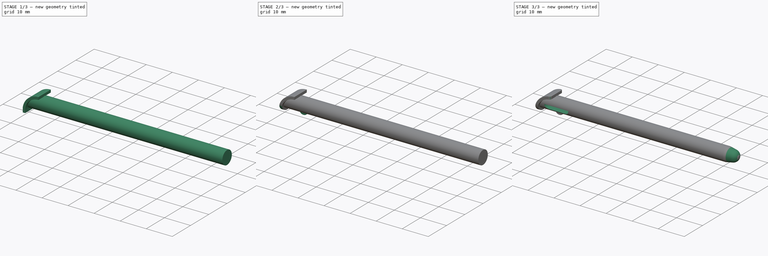
[diagram: build sequence overview — one tinted view per stage of 3, left to right]
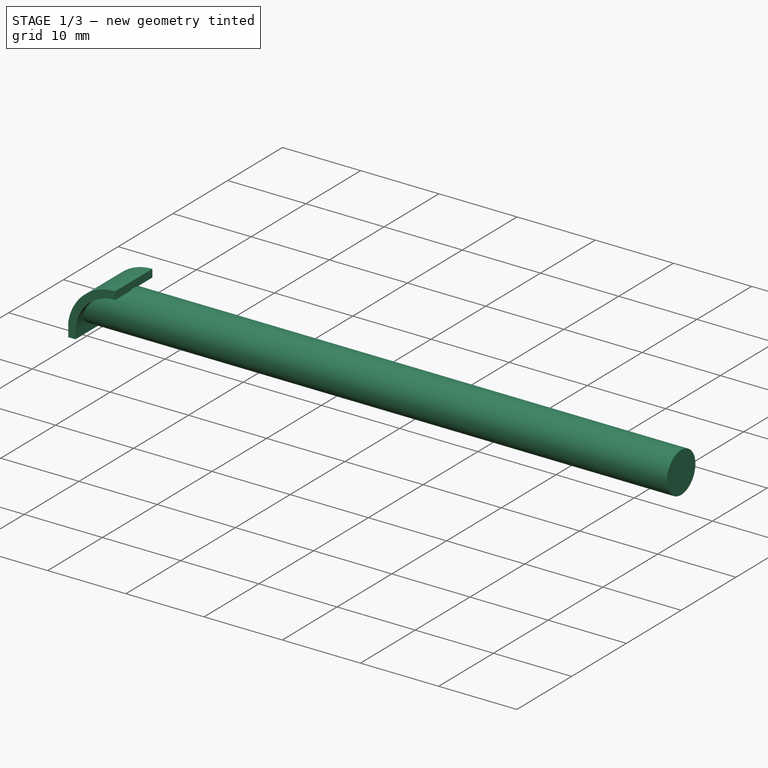
[diagram: stage 1 of 3 — iso view after this stage's code; geometry added in this stage tinted green]
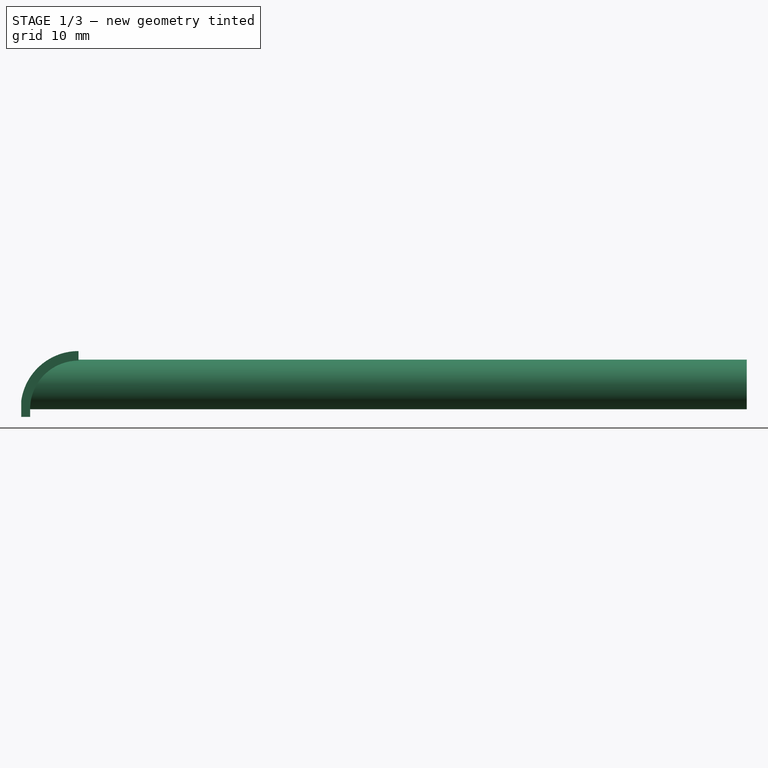
[diagram: stage 1 of 3 — front view after this stage's code; geometry added in this stage tinted green]
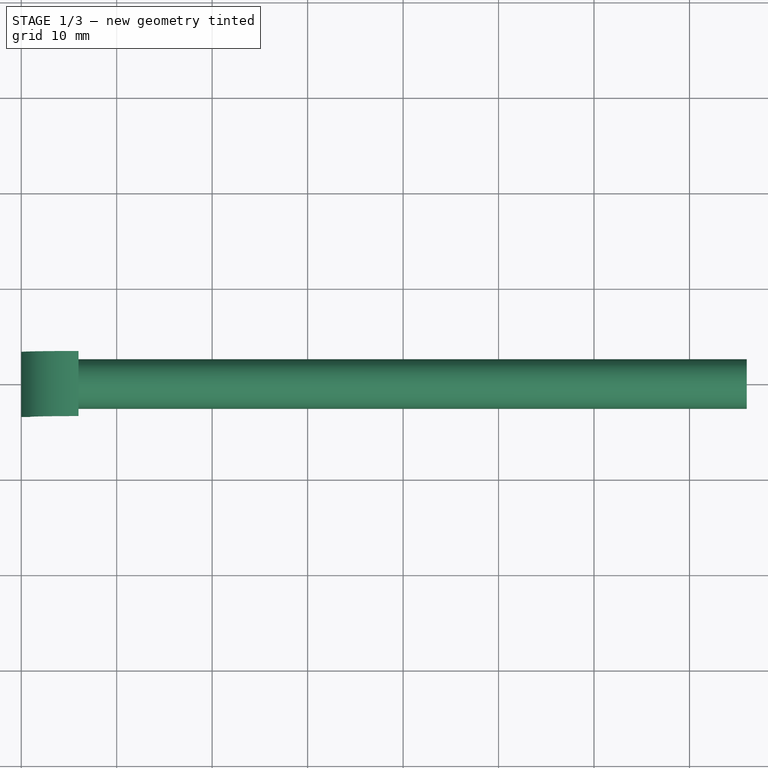
[diagram: stage 1 of 3 — top view after this stage's code; geometry added in this stage tinted green]
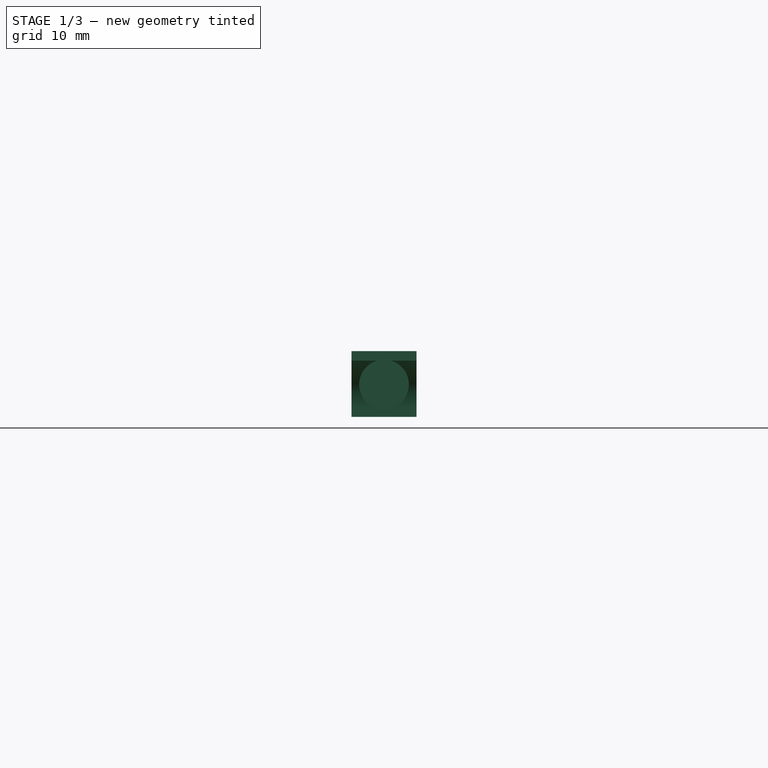
[diagram: stage 1 of 3 — right view after this stage's code; geometry added in this stage tinted green]
FCSTD DOCUMENT  (FreeCAD 1.0R39109 (Git))
Label: New 3DS XL Stylus
License: Creative Commons Attribution-NonCommercial-ShareAlike
LicenseURL: http://creativecommons.org/licenses/by-nc-sa/4.0/
objects: Sketcher::SketchObject×7, PartDesign::Pad×3, PartDesign::Pocket×3, PartDesign::Fillet×1, PartDesign::Groove×1, PartDesign::Body×1
note: 39 computed .brp shape members not serialized (recipe doc carries the construction recipe); baked Part::Feature solids carry a one-line shape summary decoded from their .brp

FEATURE [Sketcher::SketchObject] Sketch
  ArcFitTolerance = 0
  AttachmentSupport = -> [YZ_Plane]
  FullyConstrained = true
  MakeInternals = false
  MapMode = 5
  Placement = pos=(0,0,0) rot=(0.57735,0.57735,0.57735;2.0944rad)
  sketch-geometry (1):
    g0: Circle CenterX=0 CenterY=0 CenterZ=0 NormalX=0 NormalY=0 NormalZ=1 AngleXU=0 Radius=2.6
  constraints (2):
    c: Coincident(g0,g-1)
    c: Diameter(g0) = 5.2
FEATURE [PartDesign::Pad] Pad
  Direction = (1,0,0)
  Length = 76
  Length2 = 10
  Placement = pos=(0,0,0) rot=(0.57735,0.57735,0.57735;2.0944rad)
  Profile = -> Sketch
  ReferenceAxis = -> Sketch [N_Axis]
  Suppressed = false
  Type = 0
FEATURE [Sketcher::SketchObject] Sketch001
  ArcFitTolerance = 0
  AttachmentSupport = -> [XZ_Plane]
  ExternalGeometry = -> [Pad]
  FullyConstrained = true
  MakeInternals = false
  MapMode = 5
  Placement = pos=(0,0,0) rot=(1,0,0;1.5708rad)
  sketch-geometry (14):
    g0: LineSegment [constr] StartX=1.4e-15 StartY=-2.56864 StartZ=0 EndX=6 EndY=-2.56864 EndZ=0
    g1: LineSegment [constr] StartX=6.048e-13 StartY=0 StartZ=0 EndX=6.048e-13 EndY=-3.4 EndZ=0
    g2: LineSegment [constr] StartX=6 StartY=-2.56864 StartZ=0 EndX=6 EndY=3.5 EndZ=0
    g3: LineSegment StartX=6 StartY=3.5 StartZ=0 EndX=6 EndY=2.5 EndZ=0
    g4: LineSegment [constr] StartX=6.048e-13 StartY=-3.4 StartZ=0 EndX=1 EndY=-3.4 EndZ=0
    g5: Circle [constr] CenterX=6 CenterY=-2.56864 CenterZ=0 NormalX=0 NormalY=0 NormalZ=1 AngleXU=0 Radius=5.06864
    g6: LineSegment [constr] StartX=6.048e-13 StartY=0 StartZ=0 EndX=0 EndY=3.5 EndZ=0
    g7: LineSegment [constr] StartX=0 StartY=3.5 StartZ=0 EndX=6 EndY=3.5 EndZ=0
    g8: ArcOfCircle [constr] CenterX=6 CenterY=-2.5587 CenterZ=0 NormalX=0 NormalY=0 NormalZ=1 AngleXU=0 Radius=6.0587 StartAngle=1.5708 EndAngle=3.2809
    g9: LineSegment StartX=6.048e-13 StartY=-3.4 StartZ=0 EndX=6.048e-13 EndY=-1.7174 EndZ=0
    g10: ArcOfCircle CenterX=6 CenterY=-2.5587 CenterZ=0 NormalX=0 NormalY=0 NormalZ=1 AngleXU=0 Radius=6.0587 StartAngle=1.5708 EndAngle=3.00228
    g11: LineSegment StartX=0.931356 StartY=-2.56864 StartZ=0 EndX=0.931356 EndY=-3.4 EndZ=0
    g12: LineSegment StartX=6.048e-13 StartY=-3.4 StartZ=0 EndX=0.931356 EndY=-3.4 EndZ=0
    g13: ArcOfCircle CenterX=6 CenterY=-2.56864 CenterZ=0 NormalX=0 NormalY=0 NormalZ=1 AngleXU=0 Radius=5.06864 StartAngle=1.5708 EndAngle=3.14159
  constraints (40):
    c: PointOnObject(g0,g-3)
    c: Horizontal(g0)
    c: Distance(g0) = 6
    c: Coincident(g1,g-1)
    c: Vertical(g1)
    c: Distance(g1) = 3.4
    c: Coincident(g2,g0)
    c: Vertical(g2)
    c: Coincident(g3,g2)
    c: Vertical(g3)
    c: Distance(g3) = 1
    c: Coincident(g4,g1)
    c: Horizontal(g4)
    c: Distance(g4) = 1
    c: Coincident(g5,g0)
    c: PointOnObject(g4,g5)
    c: PointOnObject(g3,g5)
    c: Coincident(g6,g1)
    c: PointOnObject(g6,g-2)
    c: Coincident(g7,g6)
    c: Coincident(g7,g3)
    c: Horizontal(g7)
    c: Distance(g6) = 3.5
    c: Coincident(g8,g4)
    c: Coincident(g8,g3)
    c: Tangent(g8,g7)
    c: Coincident(g9,g4)
    c: PointOnObject(g9,g8)
    c: Vertical(g9)
    c: Coincident(g10,g9)
    c: Coincident(g10,g3)
    c: Equal(g10,g8)
    c: PointOnObject(g11,g5)
    c: PointOnObject(g11,g4)
    c: Vertical(g11)
    c: Coincident(g12,g9)
    c: Coincident(g12,g11)
    c: Coincident(g13,g3)
    c: Equal(g13,g5)
    c: Tangent(g13,g11) = -1.5708
FEATURE [PartDesign::Pad] Pad001
  BaseFeature = -> Pad
  Direction = (0,-1,2e-16)
  Length = 3.4
  Length2 = 3.4
  Placement = pos=(0,0,0) rot=(0.57735,0.57735,0.57735;2.0944rad)
  Profile = -> Sketch001
  ReferenceAxis = -> Sketch001 [N_Axis]
  Suppressed = false
  Type = 4
FEATURE [Sketcher::SketchObject] Sketch002
  ArcFitTolerance = 0
  AttachmentSupport = -> [Pad001]
  ExternalGeometry = -> [Pad001]
  FullyConstrained = true
  MakeInternals = false
  MapMode = 5
  Placement = pos=(0,-3.4,1.9e-15) rot=(0.57735,0.57735,-0.57735;2.0944rad)
  sketch-geometry (6):
    g0: LineSegment StartX=3.4 StartY=6.064e-13 StartZ=0 EndX=3.4 EndY=-1 EndZ=0
    g1: LineSegment StartX=3.4 StartY=-1 StartZ=0 EndX=-4.5 EndY=-1 EndZ=0
    g2: LineSegment StartX=-4.5 StartY=-1 StartZ=0 EndX=-4.5 EndY=6 EndZ=0
    g3: LineSegment StartX=-4.5 StartY=6 StartZ=0 EndX=-3.5 EndY=6 EndZ=0
    g4: ArcOfCircle CenterX=2.5587 CenterY=6 CenterZ=0 NormalX=0 NormalY=0 NormalZ=1 AngleXU=0 Radius=6.0587 StartAngle=3.14159 EndAngle=4.57308
    g5: LineSegment StartX=1.7174 StartY=6.084e-13 StartZ=0 EndX=3.4 EndY=6.064e-13 EndZ=0
  constraints (16):
    c: Coincident(g0,g-4)
    c: Vertical(g0)
    c: Coincident(g1,g0)
    c: Horizontal(g1)
    c: Coincident(g2,g1)
    c: Vertical(g2)
    c: Coincident(g3,g2)
    c: Coincident(g3,g-3)
    c: Horizontal(g3)
    c: Coincident(g4,g3)
    c: Coincident(g4,g-3)
    c: Coincident(g5,g4)
    c: Coincident(g5,g0)
    c: Equal(g3,g0)
    c: Distance(g3) = 1
    c: Equal(g-3,g4)
FEATURE [PartDesign::Pocket] Pocket
  BaseFeature = -> Pad001
  Direction = (0,1,0)
  Length = 10
  Length2 = 5
  Placement = pos=(0,0,0) rot=(0.57735,0.57735,0.57735;2.0944rad)
  Profile = -> Sketch002
  ReferenceAxis = -> Sketch002 [N_Axis]
  Refine = true
  Suppressed = false
  Type = 0
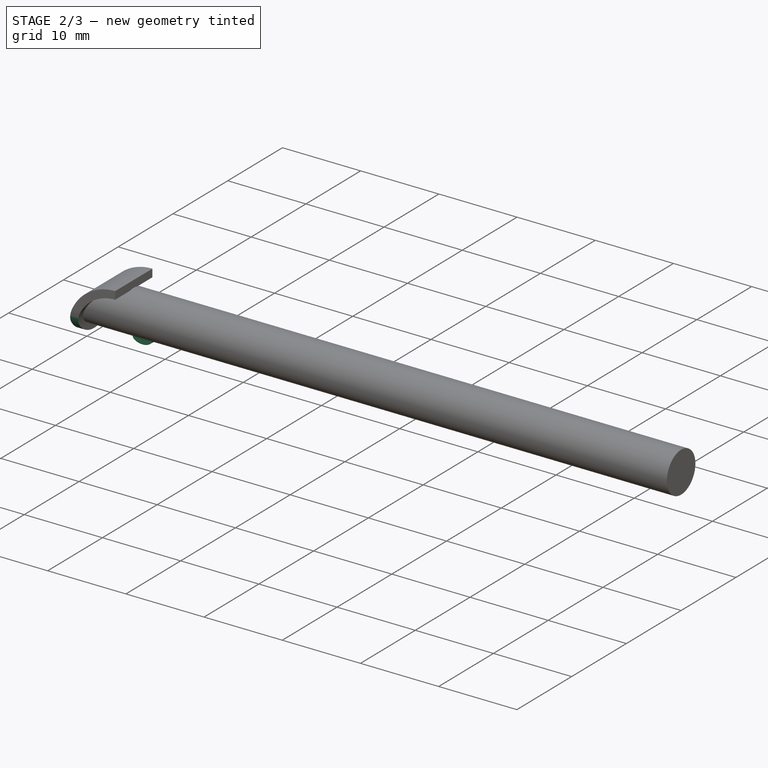
[diagram: stage 2 of 3 — iso view after this stage's code; geometry added in this stage tinted green]
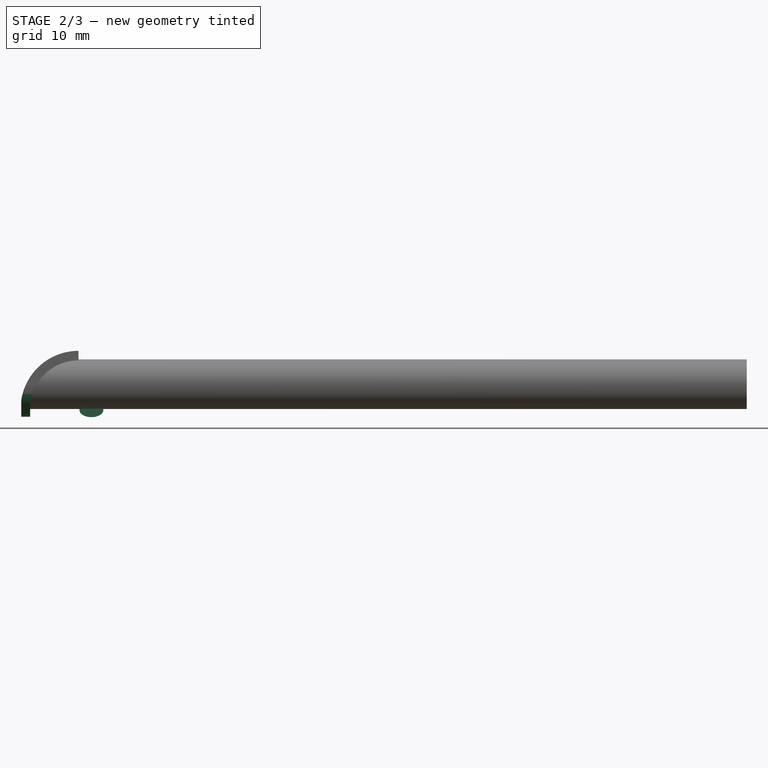
[diagram: stage 2 of 3 — front view after this stage's code; geometry added in this stage tinted green]
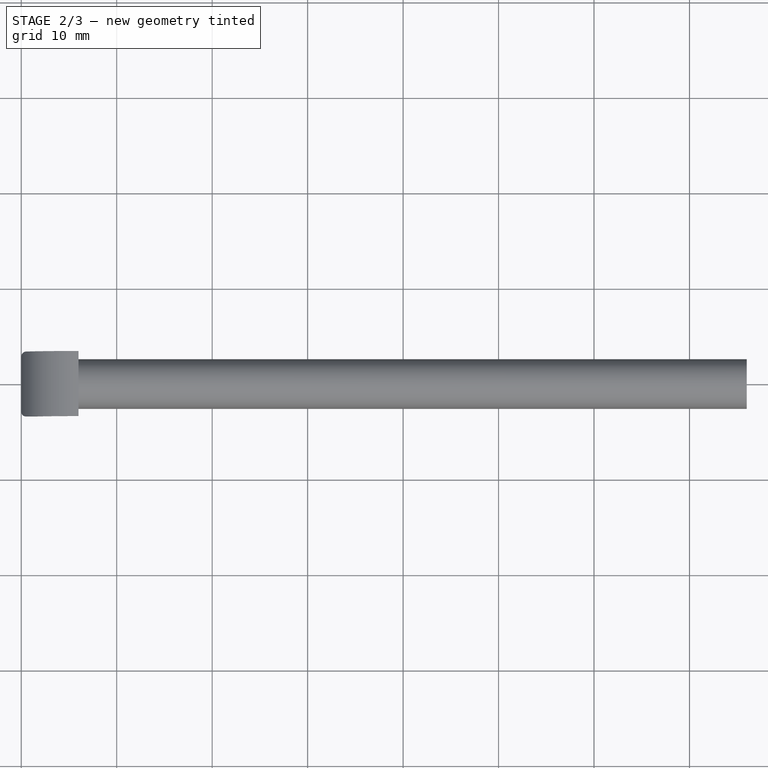
[diagram: stage 2 of 3 — top view after this stage's code; geometry added in this stage tinted green]
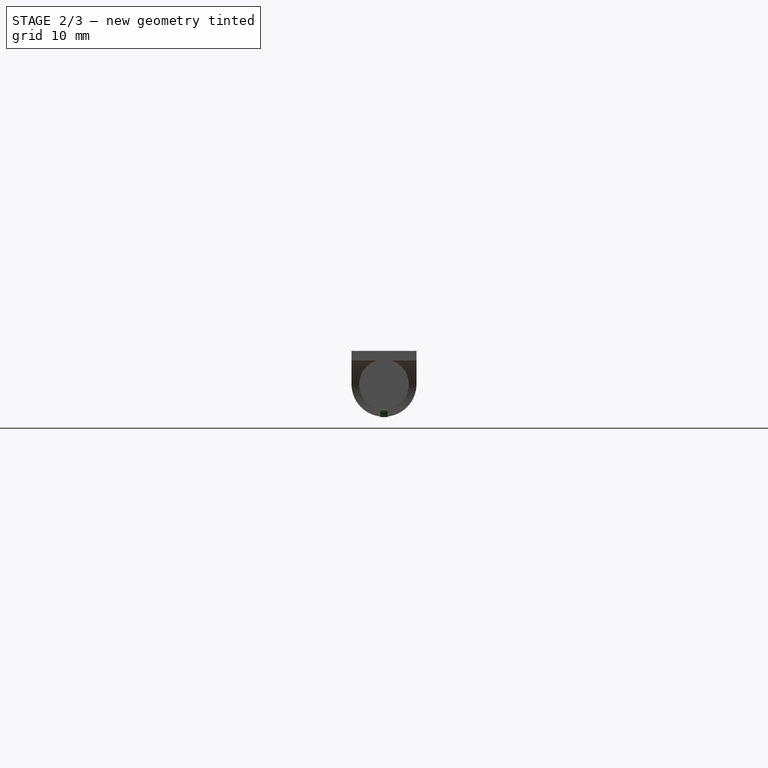
[diagram: stage 2 of 3 — right view after this stage's code; geometry added in this stage tinted green]
FEATURE [Sketcher::SketchObject] Sketch003
  ArcFitTolerance = 0
  AttachmentSupport = -> [Pocket]
  ExternalGeometry = -> [Pocket]
  FullyConstrained = true
  MakeInternals = false
  MapMode = 5
  Placement = pos=(6.048e-13,0,0) rot=(0.57735,0.57735,-0.57735;4.18879rad)
  sketch-geometry (7):
    g0: Circle [constr] CenterX=-6.68e-14 CenterY=-2.39e-14 CenterZ=0 NormalX=0 NormalY=0 NormalZ=1 AngleXU=0 Radius=3.4
    g1: LineSegment StartX=-3.4 StartY=3e-15 StartZ=0 EndX=-4.4 EndY=3e-15 EndZ=0
    g2: LineSegment StartX=-4.4 StartY=3e-15 StartZ=0 EndX=-4.4 EndY=5 EndZ=0
    g3: LineSegment StartX=-4.4 StartY=5 StartZ=0 EndX=4.4 EndY=5 EndZ=0
    g4: LineSegment StartX=4.4 StartY=5 StartZ=0 EndX=4.4 EndY=9e-16 EndZ=0
    g5: LineSegment StartX=4.4 StartY=9e-16 StartZ=0 EndX=3.4 EndY=9e-16 EndZ=0
    g6: ArcOfCircle CenterX=-6.66e-14 CenterY=7.54389e-06 CenterZ=0 NormalX=0 NormalY=0 NormalZ=1 AngleXU=0 Radius=3.4 StartAngle=6.28318 EndAngle=9.42478
  constraints (21):
    c: Coincident(g0,g-3)
    c: Tangent(g0,g-5)
    c: PointOnObject(g1,g0)
    c: PointOnObject(g1,g-1)
    c: Horizontal(g1)
    c: Coincident(g2,g1)
    c: Vertical(g2)
    c: Coincident(g3,g2)
    c: Horizontal(g3)
    c: Coincident(g4,g3)
    c: PointOnObject(g4,g-1)
    c: Vertical(g4)
    c: Coincident(g5,g4)
    c: PointOnObject(g5,g0)
    c: Horizontal(g5)
    c: Coincident(g6,g1)
    c: Coincident(g6,g5)
    c: Equal(g6,g0)
    c: Distance(g1) = 1
    c: Distance(g2) = 5
    c: Equal(g1,g5)
FEATURE [PartDesign::Pocket] Pocket001
  BaseFeature = -> Pocket
  Direction = (1,0,0)
  Length = 5
  Length2 = 5
  Placement = pos=(0,0,0) rot=(0.57735,0.57735,0.57735;2.0944rad)
  Profile = -> Sketch003
  ReferenceAxis = -> Sketch003 [N_Axis]
  Refine = true
  Suppressed = false
  Type = 0
FEATURE [Sketcher::SketchObject] Sketch004
  ArcFitTolerance = 0
  AttachmentSupport = -> [XZ_Plane]
  ExternalGeometry = -> [Pad]
  FullyConstrained = true
  MakeInternals = false
  MapMode = 5
  Placement = pos=(0,0,0) rot=(1,0,0;1.5708rad)
  sketch-geometry (8):
    g0: LineSegment [constr] StartX=0 StartY=0 StartZ=0 EndX=8.6 EndY=0 EndZ=0
    g1: LineSegment [constr] StartX=6.1 StartY=-2.7 StartZ=0 EndX=8.6 EndY=-2.7 EndZ=0
    g2: LineSegment [constr] StartX=8.6 StartY=-2.7 StartZ=0 EndX=8.6 EndY=0 EndZ=0
    g3: Ellipse CenterX=7.35 CenterY=-2.7 CenterZ=0 NormalX=0 NormalY=0 NormalZ=1 MajorRadius=1.25 MinorRadius=0.75 AngleXU=0
    g4: LineSegment [constr] StartX=8.6 StartY=-2.7 StartZ=0 EndX=6.1 EndY=-2.7 EndZ=0
    g5: LineSegment [constr] StartX=7.35 StartY=-1.95 StartZ=0 EndX=7.35 EndY=-3.45 EndZ=0
    g6: GeomPoint [constr] X=8.35 Y=-2.7 Z=0
    g7: GeomPoint [constr] X=6.35 Y=-2.7 Z=0
  constraints (13):
    c: Coincident(g0,g-1)
    c: Horizontal(g0)
    c: Horizontal(g1)
    c: Coincident(g2,g1)
    c: Coincident(g2,g0)
    c: Vertical(g2)
    c: Distance(g0) = 8.6
    c: InternalAlignment(g4-g7 -> g3) x4
    c: Distance(g5) = 1.5
    c: Distance(g4) = 2.5
    c: Symmetric(g1,g1,g3)
    c: Coincident(g4,g1)
    c: Distance(g2) = 2.7
FEATURE [PartDesign::Pad] Pad002
  BaseFeature = -> Pocket001
  Direction = (0,-1,2e-16)
  Length = 0.375
  Length2 = 0.375
  Placement = pos=(0,0,0) rot=(0.57735,0.57735,0.57735;2.0944rad)
  Profile = -> Sketch004
  ReferenceAxis = -> Sketch004 [N_Axis]
  Refine = true
  Suppressed = false
  Type = 4
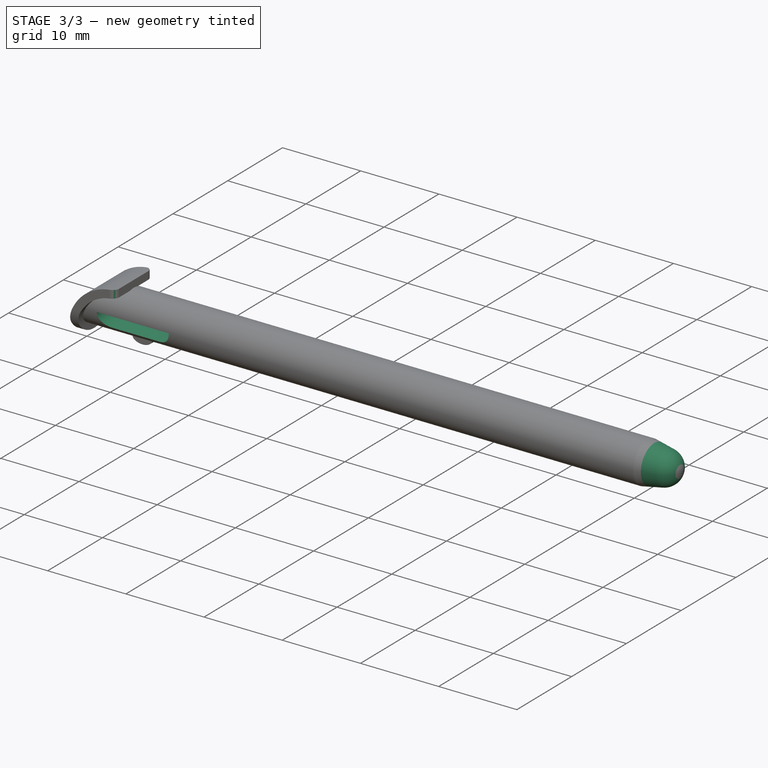
[diagram: stage 3 of 3 — iso view after this stage's code; geometry added in this stage tinted green]
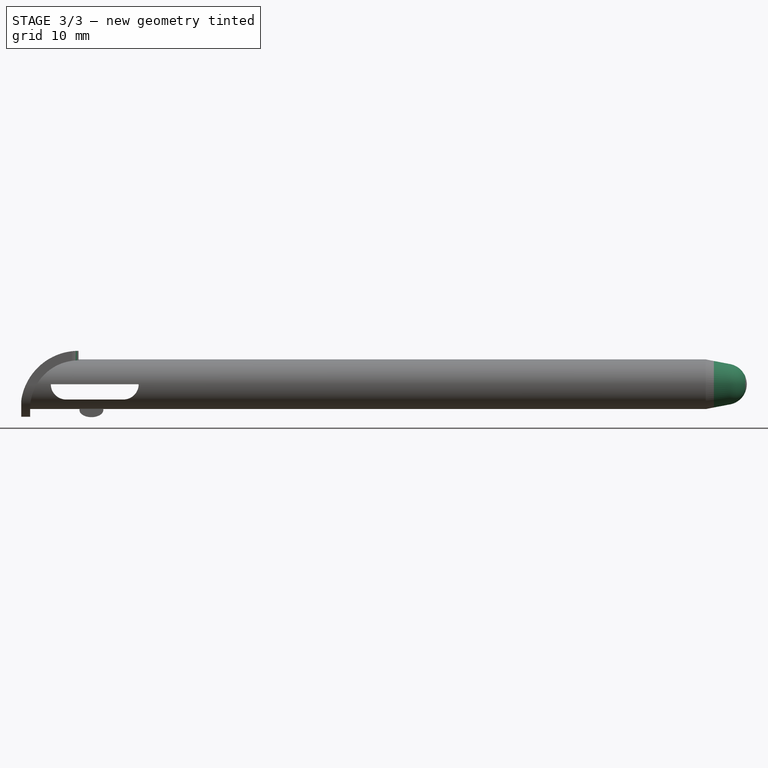
[diagram: stage 3 of 3 — front view after this stage's code; geometry added in this stage tinted green]
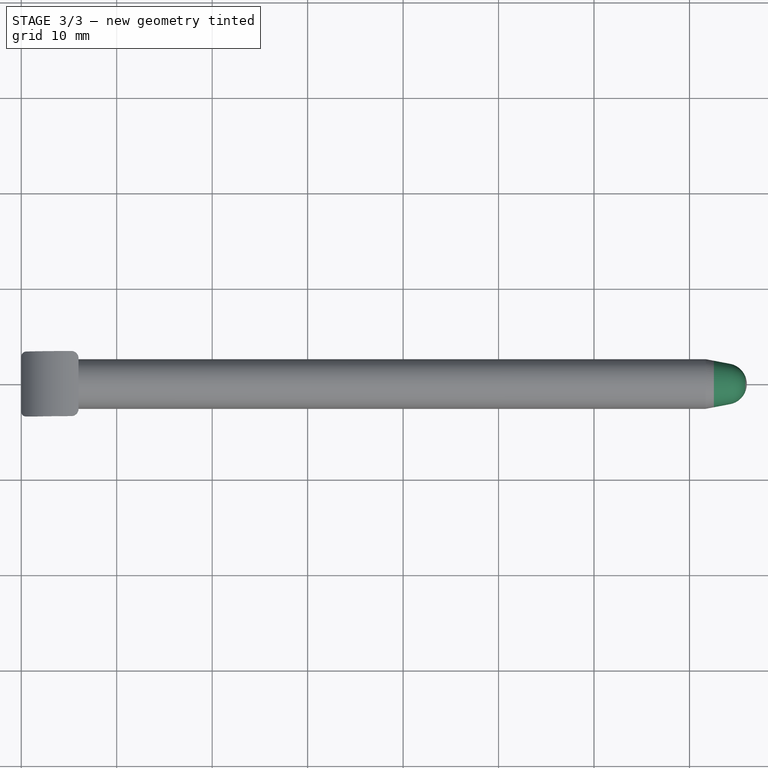
[diagram: stage 3 of 3 — top view after this stage's code; geometry added in this stage tinted green]
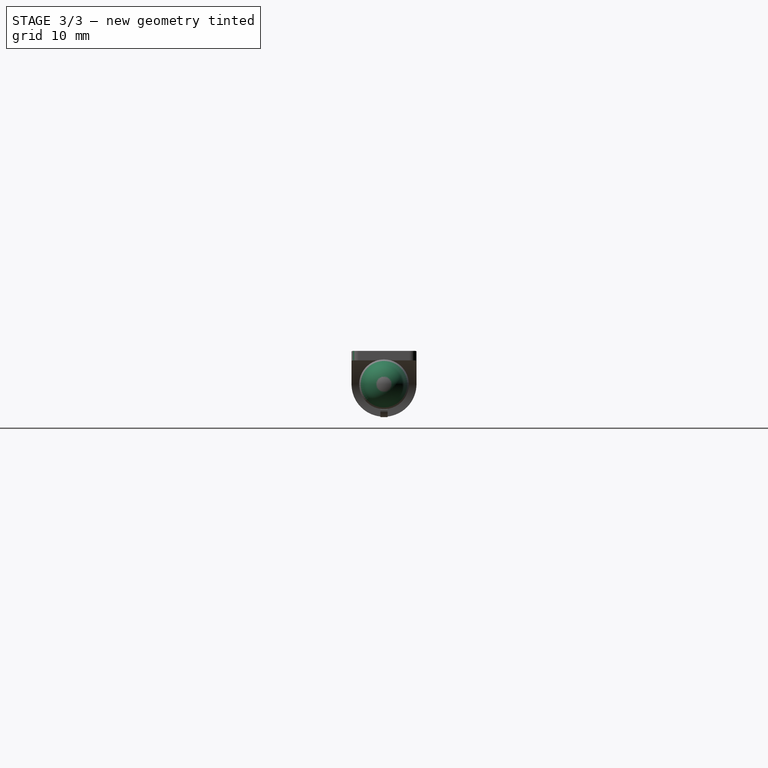
[diagram: stage 3 of 3 — right view after this stage's code; geometry added in this stage tinted green]
FEATURE [Sketcher::SketchObject] Sketch005
  ArcFitTolerance = 0
  AttachmentSupport = -> [Pad002]
  ExternalGeometry = -> [Pad]
  FullyConstrained = true
  MakeInternals = false
  MapMode = 5
  Placement = pos=(0,-3.4,5.3e-15) rot=(0.57735,0.57735,-0.57735;2.0944rad)
  sketch-geometry (9):
    g0: ArcOfCircle [constr] CenterX=0 CenterY=4.7 CenterZ=0 NormalX=0 NormalY=0 NormalZ=1 AngleXU=0 Radius=1.6 StartAngle=3.14159 EndAngle=6.28319
    g1: ArcOfCircle [constr] CenterX=0 CenterY=10.7 CenterZ=0 NormalX=0 NormalY=0 NormalZ=1 AngleXU=0 Radius=1.6 StartAngle=0 EndAngle=3.14159
    g2: LineSegment StartX=1.6 StartY=4.7 StartZ=0 EndX=1.6 EndY=10.7 EndZ=0
    g3: LineSegment [constr] StartX=-1.6 StartY=10.7 StartZ=0 EndX=-1.6 EndY=4.7 EndZ=0
    g4: LineSegment [constr] StartX=2.6 StartY=7.7 StartZ=0 EndX=1.6 EndY=7.7 EndZ=0
    g5: LineSegment StartX=1e-16 StartY=12.3 StartZ=0 EndX=1e-16 EndY=3.1 EndZ=0
    g6: ArcOfCircle CenterX=0 CenterY=10.7 CenterZ=0 NormalX=0 NormalY=0 NormalZ=1 AngleXU=0 Radius=1.6 StartAngle=0 EndAngle=1.5708
    g7: ArcOfCircle CenterX=-1e-16 CenterY=4.7 CenterZ=0 NormalX=0 NormalY=0 NormalZ=1 AngleXU=0 Radius=1.6 StartAngle=4.71239 EndAngle=6.28319
    g8: LineSegment [constr] StartX=2.6 StartY=0 StartZ=0 EndX=2.6 EndY=7.7 EndZ=0
  constraints (25):
    c: Tangent(g0,g2) = -1.5708
    c: Tangent(g2,g1) = -1.5708
    c: Tangent(g1,g3) = -1.5708
    c: Tangent(g3,g0) = -1.5708
    c: Equal(g0,g1)
    c: PointOnObject(g0,g-2)
    c: PointOnObject(g1,g-2)
    c: Distance(g2) = 6
    c: Horizontal(g4)
    c: Symmetric(g2,g2,g4)
    c: Distance(g4) = 1
    c: PointOnObject(g5,g1)
    c: PointOnObject(g5,g0)
    c: Vertical(g5)
    c: Coincident(g6,g5)
    c: Coincident(g6,g2)
    c: Coincident(g7,g5)
    c: Coincident(g7,g2)
    c: Equal(g0,g7)
    c: Equal(g1,g6)
    c: PointOnObject(g6,g5)
    c: Coincident(g8,g-3)
    c: Coincident(g8,g4)
    c: Vertical(g8)
    c: Distance(g8) = 7.7
FEATURE [PartDesign::Pocket] Pocket002
  BaseFeature = -> Pad002
  Direction = (1e-16,1,-1.4e-15)
  Length = 10
  Length2 = 5
  Placement = pos=(0,0,0) rot=(0.57735,0.57735,0.57735;2.0944rad)
  Profile = -> Sketch005
  ReferenceAxis = -> Sketch005 [N_Axis]
  Suppressed = false
  Type = 0
FEATURE [PartDesign::Fillet] Fillet
  Base = -> Pocket002 [Edge3,Edge21]
  BaseFeature = -> Pocket002
  Placement = pos=(0,0,0) rot=(0.57735,0.57735,0.57735;2.0944rad)
  Radius = 0.75
  SupportTransform = false
  Suppressed = false
  UseAllEdges = false
FEATURE [Sketcher::SketchObject] Sketch006
  ArcFitTolerance = 0
  AttachmentSupport = -> [XZ_Plane]
  ExternalGeometry = -> [Fillet]
  FullyConstrained = true
  MakeInternals = false
  MapMode = 5
  Placement = pos=(0,0,0) rot=(1,0,0;1.5708rad)
  sketch-geometry (6):
    g0: ArcOfCircle CenterX=73.85 CenterY=-2.8e-15 CenterZ=0 NormalX=0 NormalY=0 NormalZ=1 AngleXU=0 Radius=2.15 StartAngle=1.8e-15 EndAngle=1.38189
    g1: LineSegment StartX=76 StartY=2.6 StartZ=0 EndX=71.7 EndY=2.6 EndZ=0
    g2: LineSegment StartX=71.7 StartY=2.6 StartZ=0 EndX=74.2537 EndY=2.11175 EndZ=0
    g3: LineSegment StartX=76 StartY=2.6 StartZ=0 EndX=77 EndY=2.6 EndZ=0
    g4: LineSegment StartX=77 StartY=2.6 StartZ=0 EndX=77 EndY=9e-16 EndZ=0
    g5: LineSegment StartX=77 StartY=1e-15 StartZ=0 EndX=76 EndY=1e-15 EndZ=0
  constraints (16):
    c: Horizontal(g1)
    c: Coincident(g2,g1)
    c: Tangent(g2,g0) = 1.5708
    c: Distance(g1) = 4.3
    c: Diameter(g0) = 4.3
    c: Coincident(g3,g1)
    c: Horizontal(g3)
    c: Coincident(g4,g3)
    c: Vertical(g4)
    c: Coincident(g5,g4)
    c: Coincident(g5,g0)
    c: Horizontal(g5)
    c: Distance(g3) = 1
    c: Coincident(g1,g-3)
    c: PointOnObject(g0,g-1)
    c: Tangent(g0,g-3) = -1.5708
FEATURE [PartDesign::Groove] Groove
  Angle = 360
  Angle2 = 60
  Axis = (1,0,0)
  Base = (0,0,0)
  BaseFeature = -> Fillet
  Placement = pos=(0,0,0) rot=(0.57735,0.57735,0.57735;2.0944rad)
  Profile = -> Sketch006
  ReferenceAxis = -> Sketch006 [H_Axis]
  Refine = true
  Reversed = true
  Suppressed = false
  Type = 0
FEATURE [PartDesign::Body] Body  label="New Nintendo 3DS XL Stylus"
  AllowCompound = false
  Group = -> [Sketch,Pad,Sketch001,Pad001,Sketch002,Pocket,Sketch003,Pocket001,Sketch004,Pad002,Sketch005,Pocket002,Sketch006,Fillet,Groove]
  Origin = -> Origin
  Tip = -> Groove
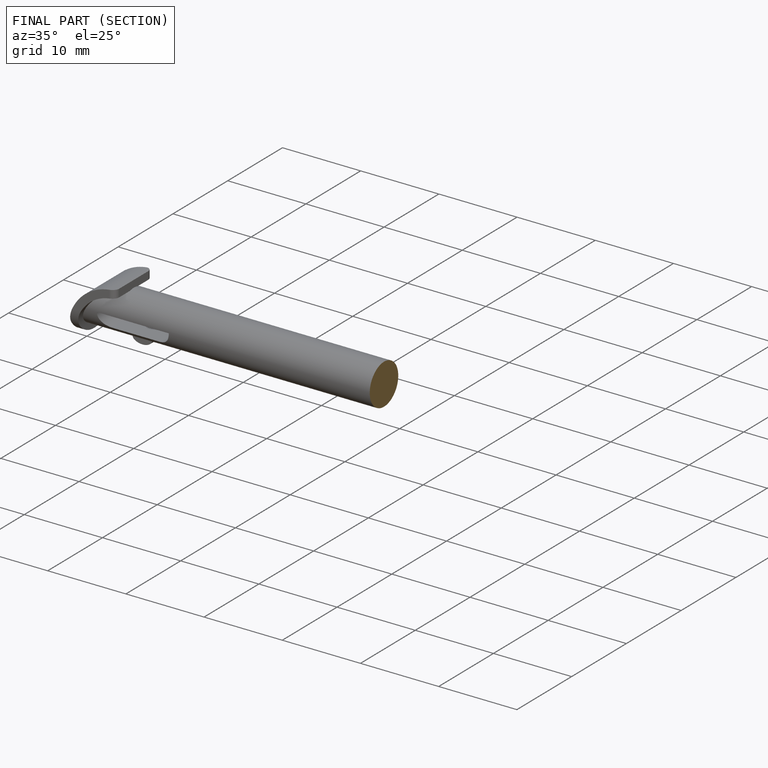
[diagram: finished part — half-section view (interior)]
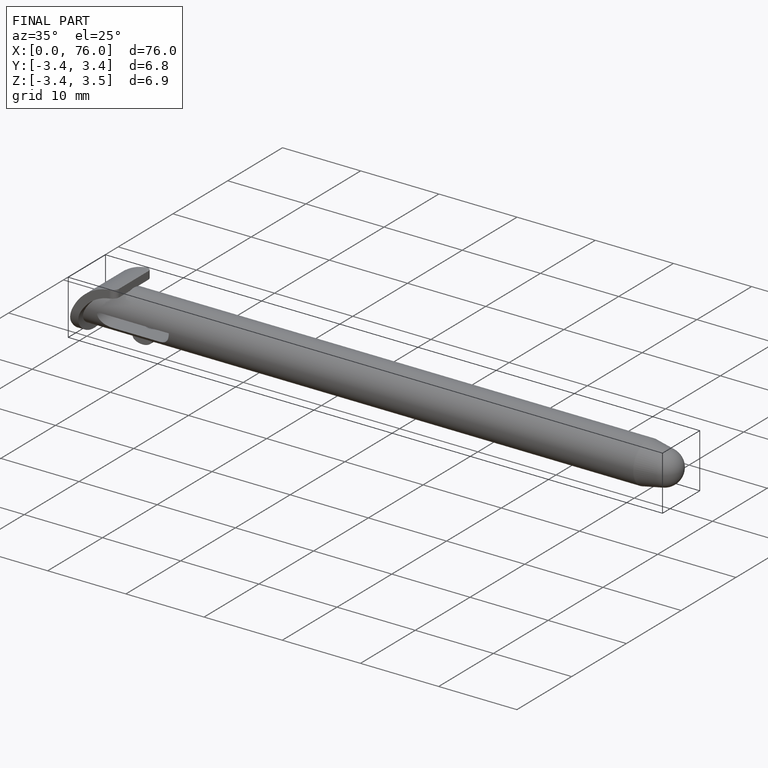
[diagram: finished part — iso view with bounding-box wireframe]
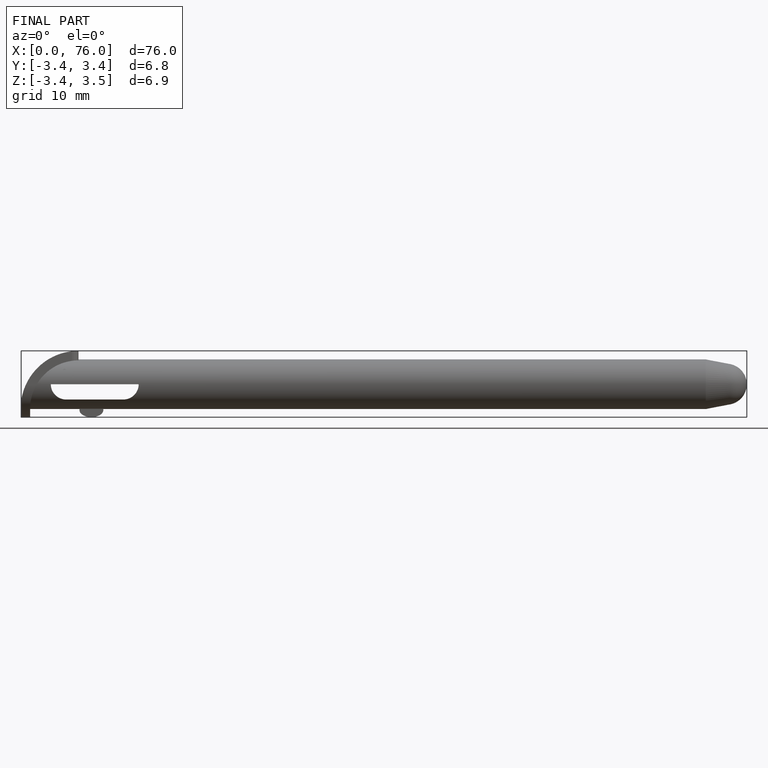
[diagram: finished part — front view with bounding-box wireframe]
